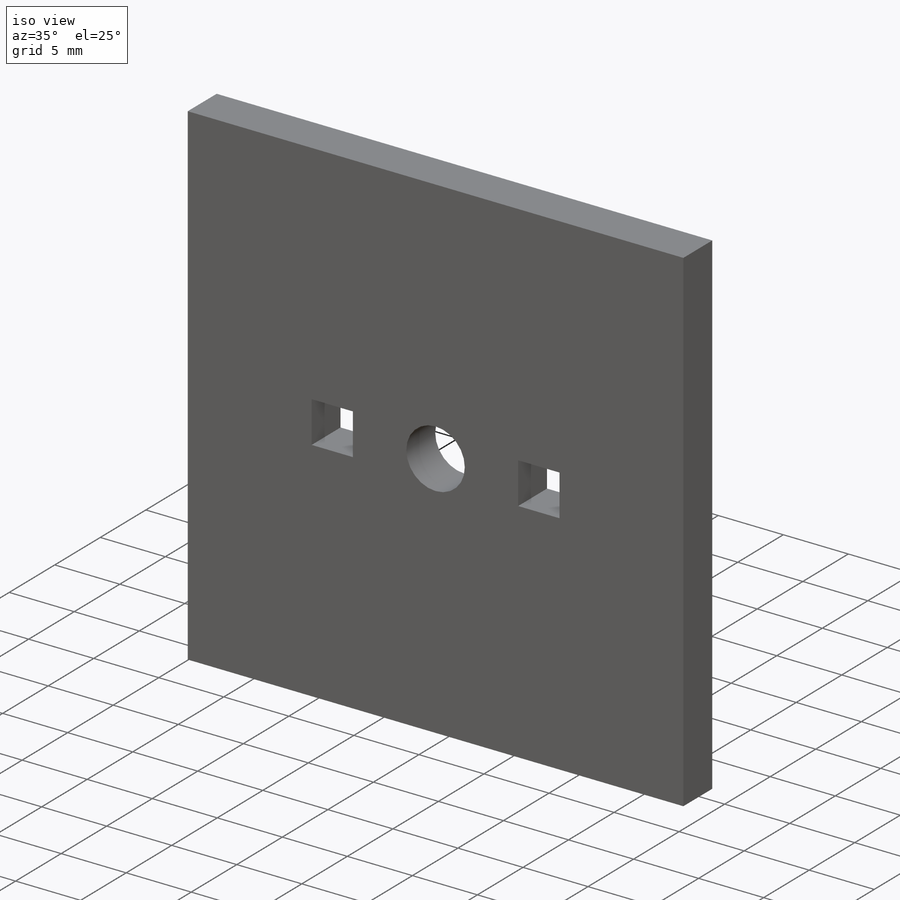
[diagram: iso view]
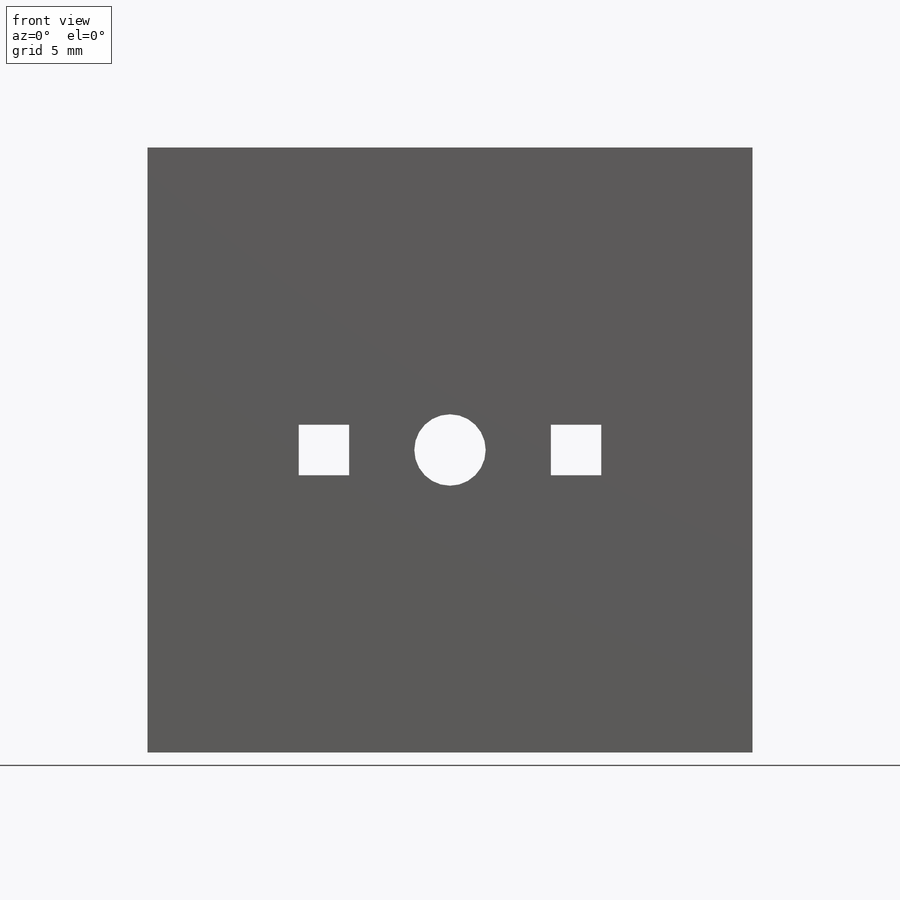
[diagram: front view]
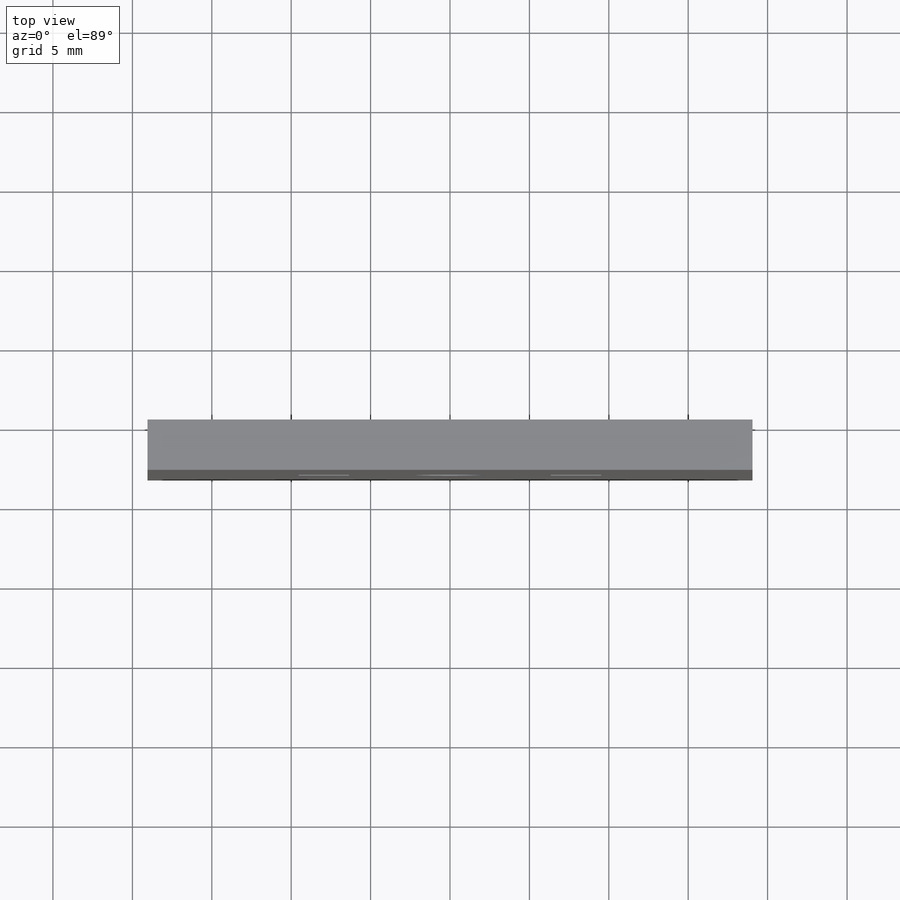
[diagram: top view]
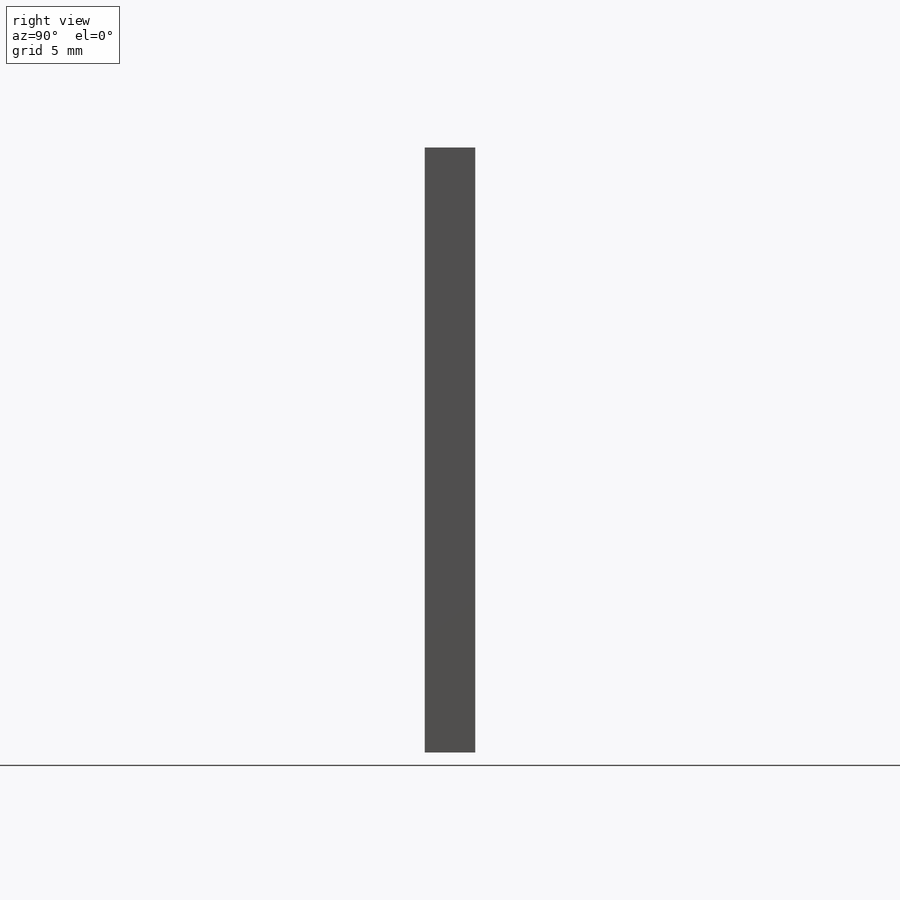
[diagram: right view]
SOLIDWORKS PART (.sldprt)
format: sldprt  version: not decoded by parser v0  size: 150,528 bytes
history: native  units: mm
features: sketch x4, material x1, extrude x1, hole x1, cut_extrude x1 (+11 scaffold rows collapsed)
feature tree (19):
  scaffold x11  (default folders/planes/origin — collapsed)
  material  "Material <not specified>"
  sketch  "Sketch1"  dims[D1=38.1mm D2=38.1mm]
  extrude  "Boss-Extrude1"  Depth=3.175mm
  hole  "#8 Clearance Hole1"  Diameter=4.4958mm Depth=10.16mm
  sketch  "Sketch3"
  sketch  "Sketch2"  dims[hole-wizard template sketch: 47 standard entries collapsed; hole parameters kept: c15.Hole Depth=10.16mm c15.D3=~14.816244mm c15.Drill Angle=118.0deg]
  sketch  "Sketch4"  dims[D1=3.175mm D2=3.175mm D3=3.175mm D4=3.175mm D5=6.35mm D6=6.35mm]
  cut_extrude  "Cut-Extrude1"  Depth=3.175mm
decode coverage: 6 of 7 modeling features carry decoded parameters
note: ~ marks probable driven/reference dimensions
note: suppression state not decoded; provenance and decode notes live in map.json
